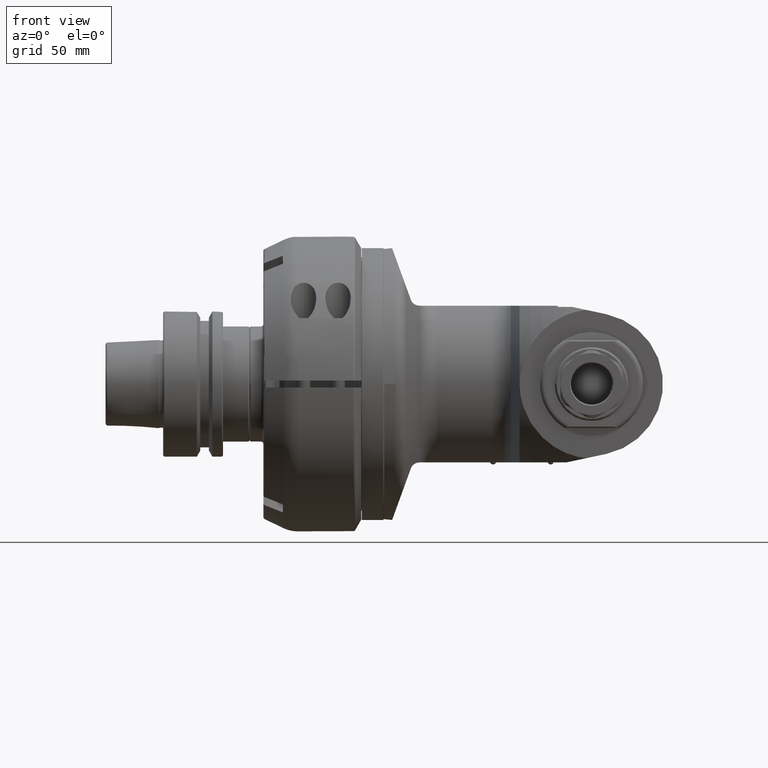
[diagram: clean part render]
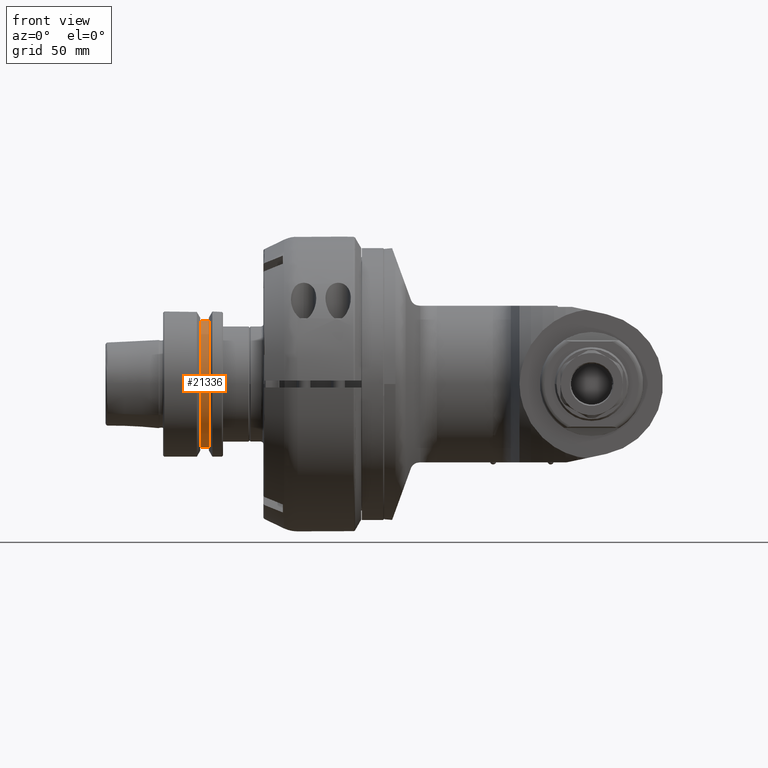
[diagram: same view with one face highlighted and labeled with its STEP entity id]
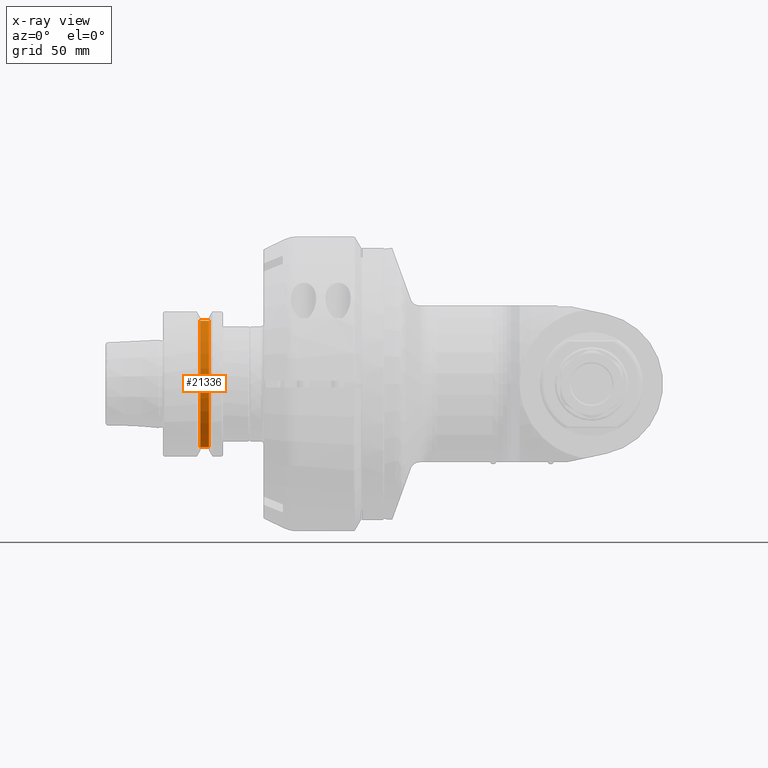
[diagram: x-ray of the same camera — body ghosted, the highlighted face saturated]
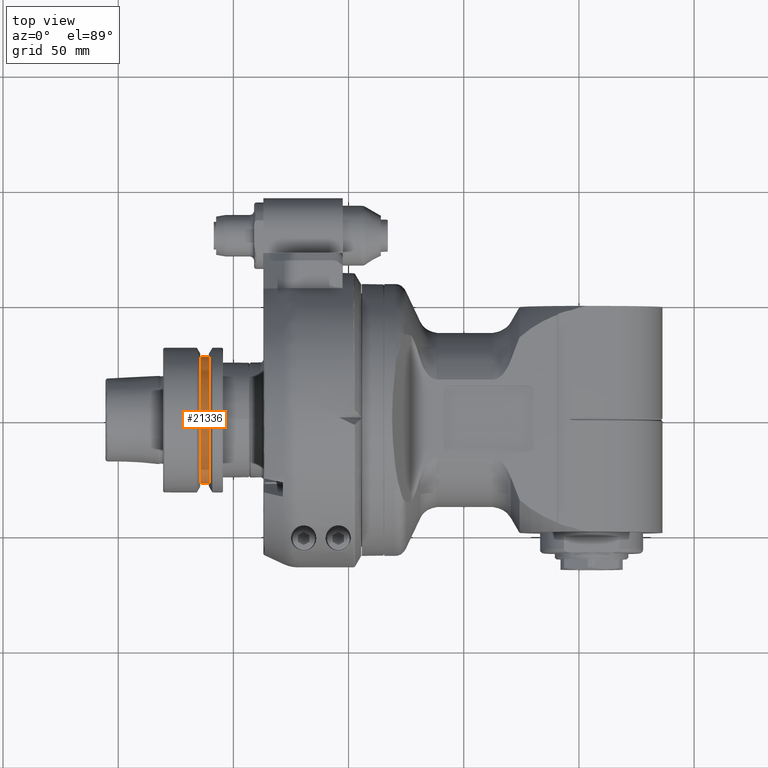
[diagram: same view with one face highlighted and labeled with its STEP entity id]
A machine part, front view. The second image highlights one B-rep face of the part: STEP entity #21336.
The next image is the same camera in x-ray: the body ghosted, the highlighted face saturated — about 0% of this face is hidden behind the body in this view.
A second angle (top view) of the same face is appended — the face is thin or edge-on in the first view.
In plain terms, the highlighted cylindrical surface (bore or boss wall) has radius 27.5 mm, axis along (-1, 0, 0).
Its self-contained STEP definition (entity closure, byte-faithful):
#1956=CIRCLE('',#23886,27.5);
#1957=CIRCLE('',#23887,27.5);
#1970=CIRCLE('',#23904,27.5);
#1971=CIRCLE('',#23905,27.5);
#2340=CYLINDRICAL_SURFACE('',#23945,27.5);
#3032=FACE_OUTER_BOUND('',#3975,.T.);
#3975=EDGE_LOOP('',(#18654,#18655,#18656,#18657,#18658,#18659));
#5466=LINE('',#41372,#6961);
#6961=VECTOR('',#29785,27.5);
#9359=VERTEX_POINT('',#41262);
#9360=VERTEX_POINT('',#41263);
#9373=VERTEX_POINT('',#41297);
#9374=VERTEX_POINT('',#41298);
#12528=EDGE_CURVE('',#9359,#9360,#1956,.T.);
#12529=EDGE_CURVE('',#9360,#9359,#1957,.T.);
#12545=EDGE_CURVE('',#9373,#9374,#1970,.T.);
#12546=EDGE_CURVE('',#9374,#9373,#1971,.T.);
#12580=EDGE_CURVE('',#9374,#9360,#5466,.T.);
#18654=ORIENTED_EDGE('',*,*,#12545,.F.);
#18655=ORIENTED_EDGE('',*,*,#12546,.F.);
#18656=ORIENTED_EDGE('',*,*,#12580,.T.);
#18657=ORIENTED_EDGE('',*,*,#12529,.T.);
#18658=ORIENTED_EDGE('',*,*,#12528,.T.);
#18659=ORIENTED_EDGE('',*,*,#12580,.F.);
#21336=ADVANCED_FACE('',(#3032),#2340,.T.);
#23886=AXIS2_PLACEMENT_3D('',#41264,#29659,#29660);
#23887=AXIS2_PLACEMENT_3D('',#41265,#29661,#29662);
#23904=AXIS2_PLACEMENT_3D('',#41299,#29698,#29699);
#23905=AXIS2_PLACEMENT_3D('',#41300,#29700,#29701);
#23945=AXIS2_PLACEMENT_3D('',#41371,#29783,#29784);
#29659=DIRECTION('center_axis',(0.,0.,1.));
#29660=DIRECTION('ref_axis',(1.,0.,0.));
#29661=DIRECTION('center_axis',(0.,0.,1.));
#29662=DIRECTION('ref_axis',(1.,0.,0.));
#29698=DIRECTION('center_axis',(0.,0.,1.));
#29699=DIRECTION('ref_axis',(1.,0.,0.));
#29700=DIRECTION('center_axis',(0.,0.,1.));
#29701=DIRECTION('ref_axis',(1.,0.,0.));
#29783=DIRECTION('center_axis',(0.,0.,1.));
#29784=DIRECTION('ref_axis',(1.,0.,0.));
#29785=DIRECTION('',(0.,0.,-1.));
#41262=CARTESIAN_POINT('',(-5.05166804648283E-15,-27.5,31.12));
#41263=CARTESIAN_POINT('',(-27.5,-3.36777869765522E-15,31.12));
#41264=CARTESIAN_POINT('Origin',(0.,0.,31.12));
#41265=CARTESIAN_POINT('Origin',(0.,0.,31.12));
#41297=CARTESIAN_POINT('',(-5.05166804648283E-15,-27.5,34.87));
#41298=CARTESIAN_POINT('',(-27.5,-3.36777869765522E-15,34.87));
#41299=CARTESIAN_POINT('Origin',(0.,0.,34.87));
#41300=CARTESIAN_POINT('Origin',(0.,0.,34.87));
#41371=CARTESIAN_POINT('Origin',(0.,0.,32.995));
#41372=CARTESIAN_POINT('',(-27.5,-3.36777869765522E-15,32.995));